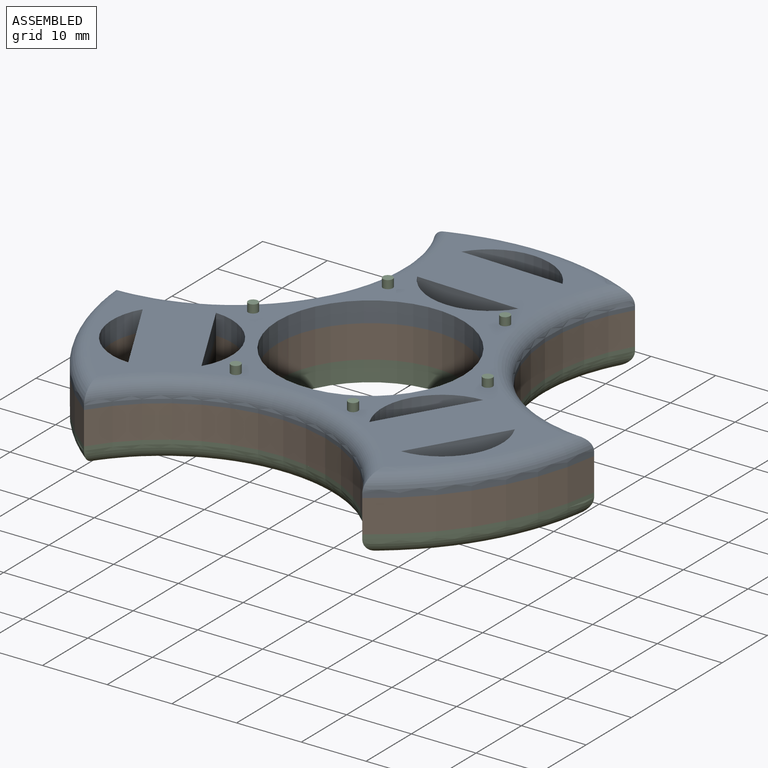
[diagram: assembled view]
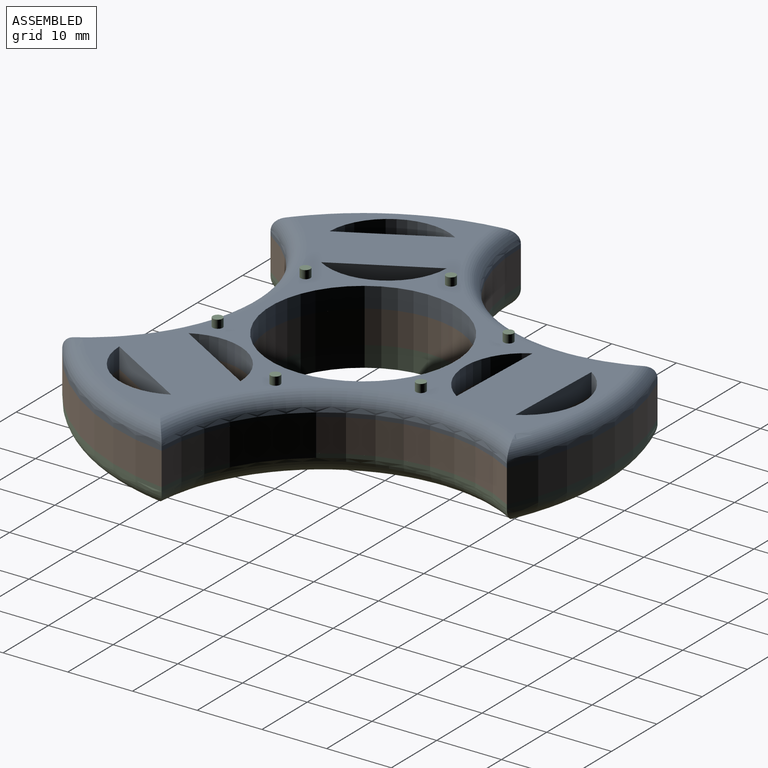
[diagram: assembled view, second angle]
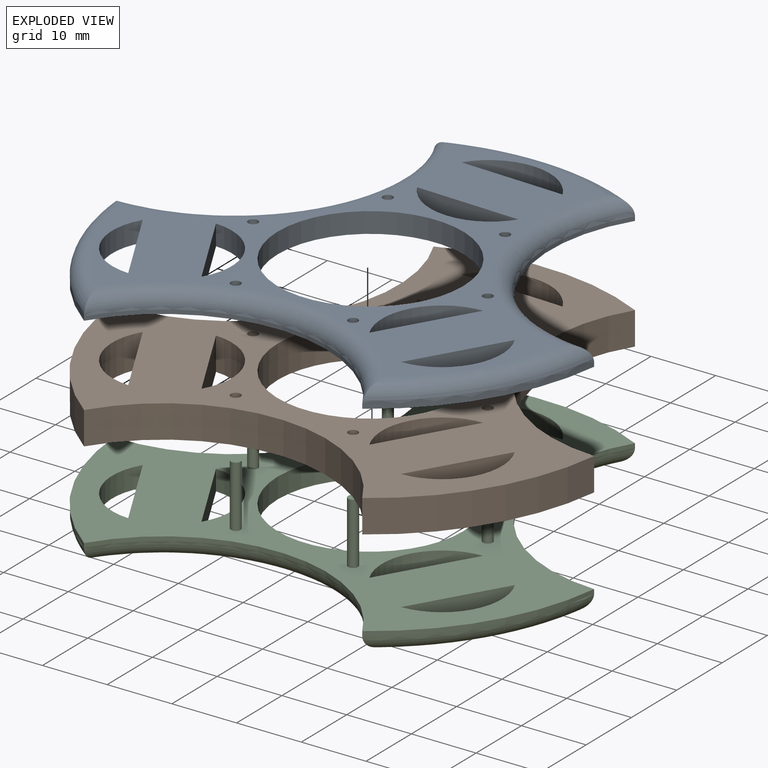
[diagram: exploded view]
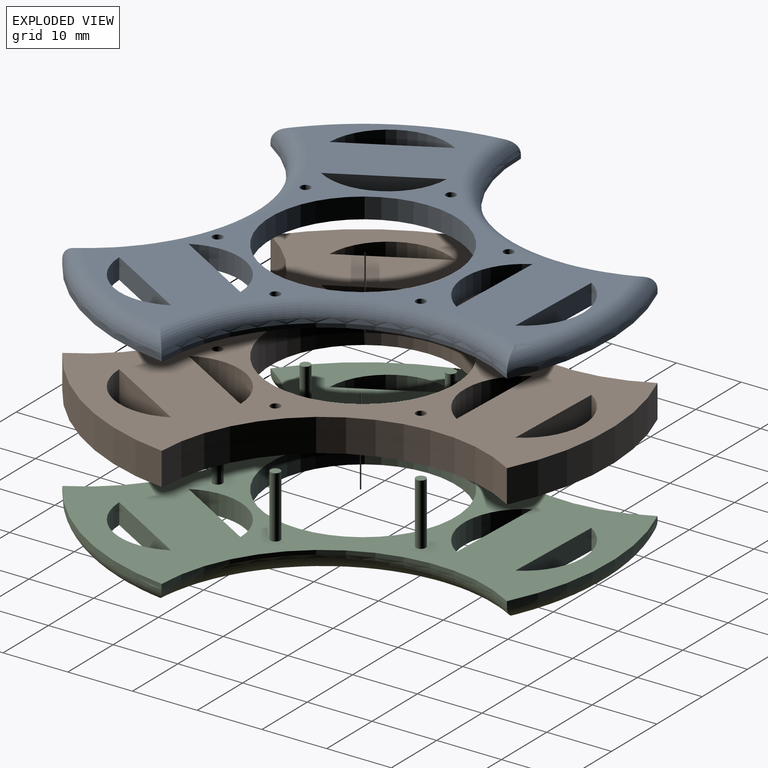
[diagram: exploded view, second angle]
ASSEMBLY  parts=3 mates=2
PART A: 33 faces, bbox 82.1x75.7x4.3 mm
  f0: cylinder r=9.29mm len=13.65mm, axis (0,0,-1), area 60.2mm2, adj f24,f25,f26
  f1: cylinder r=9.34mm len=16.02mm, axis (0,0,-1), area 61.2mm2, adj f11,f25,f26
  f2: plane 16.02x3.18mm, normal (0.03,1,0), area 50.9mm2, adj f19,f25,f26
  f3: plane 13.65x8.04mm, normal (0.86,-0.51,0), area 50.3mm2, adj f20,f25,f26
  f4: cylinder r=9.3mm len=14.09mm, axis (0,0,-1), area 61.3mm2, adj f21,f25,f26
  f5: cylinder r=9.29mm len=14.09mm, axis (0,0,-1), area 61.3mm2, adj f22,f25,f26
  f6: cylinder r=25.4mm len=37.38mm, axis (0,0,-1), area 33.8mm2, adj f7,f23,f26,f30
  f7: cylinder r=38.1mm len=28.13mm, axis (0,0,-1), area 20.9mm2, adj f6,f8,f26,f28
  f8: cylinder r=25.4mm len=43.97mm, axis (0,0,-1), area 33.8mm2, adj f7,f9,f26,f27
  f9: cylinder r=38.1mm len=27.14mm, axis (0,0,-1), area 20.9mm2, adj f8,f10,f26,f29
  f10: cylinder r=25.4mm len=38.75mm, axis (0,0,-1), area 33.8mm2, adj f9,f23,f26,f31
  f11: plane 16.02x3.18mm, normal (-0.03,-1,0), area 50.9mm2, adj f1,f25,f26
  f12: cylinder r=0.76mm len=3.18mm, axis (0,0,-1), area 15.2mm2, adj f25,f26
  f13: cylinder r=0.76mm len=3.18mm, axis (0,0,-1), area 15.2mm2, adj f25,f26
  f14: cylinder r=0.76mm len=3.18mm, axis (0,0,-1), area 15.2mm2, adj f25,f26
  f15: cylinder r=0.76mm len=3.18mm, axis (0,0,-1), area 15.2mm2, adj f25,f26
  f16: cylinder r=0.76mm len=3.18mm, axis (0,0,-1), area 15.2mm2, adj f25,f26
  f17: cylinder r=0.76mm len=3.18mm, axis (0,0,-1), area 15.2mm2, adj f25,f26
  f18: cylinder r=14.31mm len=28.63mm, axis (0,0,-1), area 285.5mm2, adj f25,f26
  f19: cylinder r=9.32mm len=16.02mm, axis (0,0,-1), area 61.2mm2, adj f2,f25,f26
  f20: cylinder r=9.3mm len=13.65mm, axis (0,0,-1), area 60.2mm2, adj f3,f25,f26
  f21: plane 14.09x7.62mm, normal (0.88,0.48,0), area 50.9mm2, adj f4,f25,f26
  f22: plane 14.09x7.62mm, normal (-0.88,-0.48,0), area 50.9mm2, adj f5,f25,f26
  f23: cylinder r=38.1mm len=31.82mm, axis (0,0,-1), area 20.9mm2, adj f6,f10,f26,f32
  f24: plane 13.65x8.04mm, normal (-0.86,0.51,0), area 50.3mm2, adj f0,f25,f26
  f25: plane 70.11x63.7mm, normal (0,0,1), area 1158.6mm2, adj f0,f1,f2,f3,f4,f5,f11,f12
  f26: plane 75.85x69.9mm, normal (0,0,-1), area 1784.4mm2, adj f0,f1,f2,f3,f4,f5,f6,f7
  f27: torus R=27.94mm, axis (0,0,1), area 211.7mm2, adj f8,f25,f28,f29
  f28: torus R=35.56mm, axis (0,0,1), area 120.3mm2, adj f7,f25,f27,f30
  f29: torus R=35.56mm, axis (0,0,1), area 120.5mm2, adj f9,f25,f27,f31
  f30: torus R=27.94mm, axis (0,0,1), area 211.6mm2, adj f6,f25,f28,f32
  f31: torus R=27.94mm, axis (0,0,1), area 211.7mm2, adj f10,f25,f29,f32
  f32: torus R=35.56mm, axis (0,0,1), area 120.1mm2, adj f23,f25,f30,f31
PART B: 27 faces, bbox 75.8x69.9x5.1 mm
  f0: cylinder r=9.29mm len=13.65mm, axis (0,0,-1), area 96.4mm2, adj f24,f25,f26
  f1: cylinder r=9.34mm len=16.02mm, axis (0,0,-1), area 97.8mm2, adj f11,f25,f26
  f2: plane 16.02x5.08mm, normal (0.03,1,0), area 81.4mm2, adj f19,f25,f26
  f3: plane 13.65x8.04mm, normal (0.86,-0.51,0), area 80.5mm2, adj f20,f25,f26
  f4: cylinder r=9.3mm len=14.09mm, axis (0,0,-1), area 98mm2, adj f21,f25,f26
  f5: cylinder r=9.29mm len=14.09mm, axis (0,0,-1), area 98.1mm2, adj f22,f25,f26
  f6: cylinder r=25.4mm len=37.38mm, axis (0,0,-1), area 270.1mm2, adj f7,f23,f25,f26
  f7: cylinder r=38.1mm len=28.13mm, axis (0,0,-1), area 167.2mm2, adj f6,f8,f25,f26
  f8: cylinder r=25.4mm len=43.97mm, axis (0,0,-1), area 270.2mm2, adj f7,f9,f25,f26
  f9: cylinder r=38.1mm len=27.14mm, axis (0,0,-1), area 167.4mm2, adj f8,f10,f25,f26
  f10: cylinder r=25.4mm len=38.75mm, axis (0,0,-1), area 270.2mm2, adj f9,f23,f25,f26
  f11: plane 16.02x5.08mm, normal (-0.03,-1,0), area 81.4mm2, adj f1,f25,f26
  f12: cylinder r=0.76mm len=5.08mm, axis (0,0,-1), area 24.3mm2, adj f25,f26
  f13: cylinder r=0.76mm len=5.08mm, axis (0,0,-1), area 24.3mm2, adj f25,f26
  f14: cylinder r=0.76mm len=5.08mm, axis (0,0,-1), area 24.3mm2, adj f25,f26
  f15: cylinder r=0.76mm len=5.08mm, axis (0,0,-1), area 24.3mm2, adj f25,f26
  f16: cylinder r=0.76mm len=5.08mm, axis (0,0,-1), area 24.3mm2, adj f25,f26
  f17: cylinder r=0.76mm len=5.08mm, axis (0,0,-1), area 24.3mm2, adj f25,f26
  f18: cylinder r=14.31mm len=28.63mm, axis (0,0,-1), area 456.8mm2, adj f25,f26
  f19: cylinder r=9.32mm len=16.02mm, axis (0,0,-1), area 98mm2, adj f2,f25,f26
  f20: cylinder r=9.3mm len=13.65mm, axis (0,0,-1), area 96.3mm2, adj f3,f25,f26
  f21: plane 14.09x7.62mm, normal (0.88,0.48,0), area 81.4mm2, adj f4,f25,f26
  f22: plane 14.09x7.62mm, normal (-0.88,-0.48,0), area 81.4mm2, adj f5,f25,f26
  f23: cylinder r=38.1mm len=31.82mm, axis (0,0,-1), area 166.9mm2, adj f6,f10,f25,f26
  f24: plane 13.65x8.04mm, normal (-0.86,0.51,0), area 80.5mm2, adj f0,f25,f26
  f25: plane 75.85x69.9mm, normal (0,0,1), area 1784.4mm2, adj f0,f1,f2,f3,f4,f5,f6,f7
  f26: plane 75.85x69.9mm, normal (0,0,-1), area 1784.4mm2, adj f0,f1,f2,f3,f4,f5,f6,f7
PART C: 39 faces, bbox 82.1x75.7x12.7 mm
  f0: cylinder r=9.29mm len=13.65mm, axis (0,0,-1), area 60.2mm2, adj f18,f19,f20
  f1: cylinder r=9.34mm len=16.02mm, axis (0,0,-1), area 61.2mm2, adj f11,f19,f20
  f2: plane 16.02x3.18mm, normal (0.03,1,0), area 50.9mm2, adj f13,f19,f20
  f3: plane 13.65x8.04mm, normal (0.86,-0.51,0), area 50.3mm2, adj f14,f19,f20
  f4: cylinder r=9.3mm len=14.09mm, axis (0,0,-1), area 61.3mm2, adj f15,f19,f20
  f5: cylinder r=9.29mm len=14.09mm, axis (0,0,-1), area 61.3mm2, adj f16,f19,f20
  f6: cylinder r=25.4mm len=37.38mm, axis (0,0,-1), area 33.8mm2, adj f7,f17,f19,f24
  f7: cylinder r=38.1mm len=28.13mm, axis (0,0,-1), area 20.9mm2, adj f6,f8,f19,f22
  f8: cylinder r=25.4mm len=43.97mm, axis (0,0,-1), area 33.8mm2, adj f7,f9,f19,f21
  f9: cylinder r=38.1mm len=27.14mm, axis (0,0,-1), area 20.9mm2, adj f8,f10,f19,f23
  f10: cylinder r=25.4mm len=38.75mm, axis (0,0,-1), area 33.8mm2, adj f9,f17,f19,f25
  f11: plane 16.02x3.18mm, normal (-0.03,-1,0), area 50.9mm2, adj f1,f19,f20
  f12: cylinder r=14.31mm len=28.63mm, axis (0,0,-1), area 285.5mm2, adj f19,f20
  f13: cylinder r=9.32mm len=16.02mm, axis (0,0,-1), area 61.2mm2, adj f2,f19,f20
  f14: cylinder r=9.3mm len=13.65mm, axis (0,0,-1), area 60.2mm2, adj f3,f19,f20
  f15: plane 14.09x7.62mm, normal (0.88,0.48,0), area 50.9mm2, adj f4,f19,f20
  f16: plane 14.09x7.62mm, normal (-0.88,-0.48,0), area 50.9mm2, adj f5,f19,f20
  f17: cylinder r=38.1mm len=31.82mm, axis (0,0,-1), area 20.9mm2, adj f6,f10,f19,f26
  f18: plane 13.65x8.04mm, normal (-0.86,0.51,0), area 50.3mm2, adj f0,f19,f20
  f19: plane 75.85x69.9mm, normal (0,0,1), area 1784.4mm2, adj f0,f1,f2,f3,f4,f5,f6,f7
  f20: plane 70.11x63.7mm, normal (0,0,-1), area 1169.6mm2, adj f0,f1,f2,f3,f4,f5,f11,f12
  f21: torus R=27.94mm, axis (0,0,1), area 211.7mm2, adj f8,f20,f22,f23
  f22: torus R=35.56mm, axis (0,0,1), area 120.3mm2, adj f7,f20,f21,f24
  f23: torus R=35.56mm, axis (0,0,1), area 120.5mm2, adj f9,f20,f21,f25
  f24: torus R=27.94mm, axis (0,0,1), area 211.6mm2, adj f6,f20,f22,f26
  f25: torus R=27.94mm, axis (0,0,1), area 211.7mm2, adj f10,f20,f23,f26
  f26: torus R=35.56mm, axis (0,0,1), area 120.1mm2, adj f17,f20,f24,f25
  f27: cylinder r=0.76mm len=9.53mm, axis (0,0,-1), area 45.6mm2, adj f19,f28
  f28: plane 1.52x1.52mm, normal (0,0,1), area 1.8mm2, adj f27
  f29: cylinder r=0.76mm len=9.53mm, axis (0,0,-1), area 45.6mm2, adj f19,f30
  f30: plane 1.52x1.52mm, normal (0,0,1), area 1.8mm2, adj f29
  f31: cylinder r=0.76mm len=9.53mm, axis (0,0,-1), area 45.6mm2, adj f19,f32
  f32: plane 1.52x1.52mm, normal (0,0,1), area 1.8mm2, adj f31
  f33: cylinder r=0.76mm len=9.53mm, axis (0,0,-1), area 45.6mm2, adj f19,f34
  f34: plane 1.52x1.52mm, normal (0,0,1), area 1.8mm2, adj f33
  f35: cylinder r=0.76mm len=9.53mm, axis (0,0,-1), area 45.6mm2, adj f19,f36
  f36: plane 1.52x1.52mm, normal (0,0,1), area 1.8mm2, adj f35
  f37: cylinder r=0.76mm len=9.53mm, axis (0,0,-1), area 45.6mm2, adj f19,f38
  f38: plane 1.52x1.52mm, normal (0,0,1), area 1.8mm2, adj f37
PLACE A t=(12.1,35.1,41.07)mm
PLACE B t=(12.1,35.1,35.99)mm
PLACE C t=(12.1,35.1,32.81)mm
MATE planar A.f26 <-> B.f25  axis (0,0,-1) through (-2.73,70.2,41.07)mm
MATE planar B.f26 <-> C.f19  axis (0,0,-1) through (-2.73,70.2,35.99)mm
